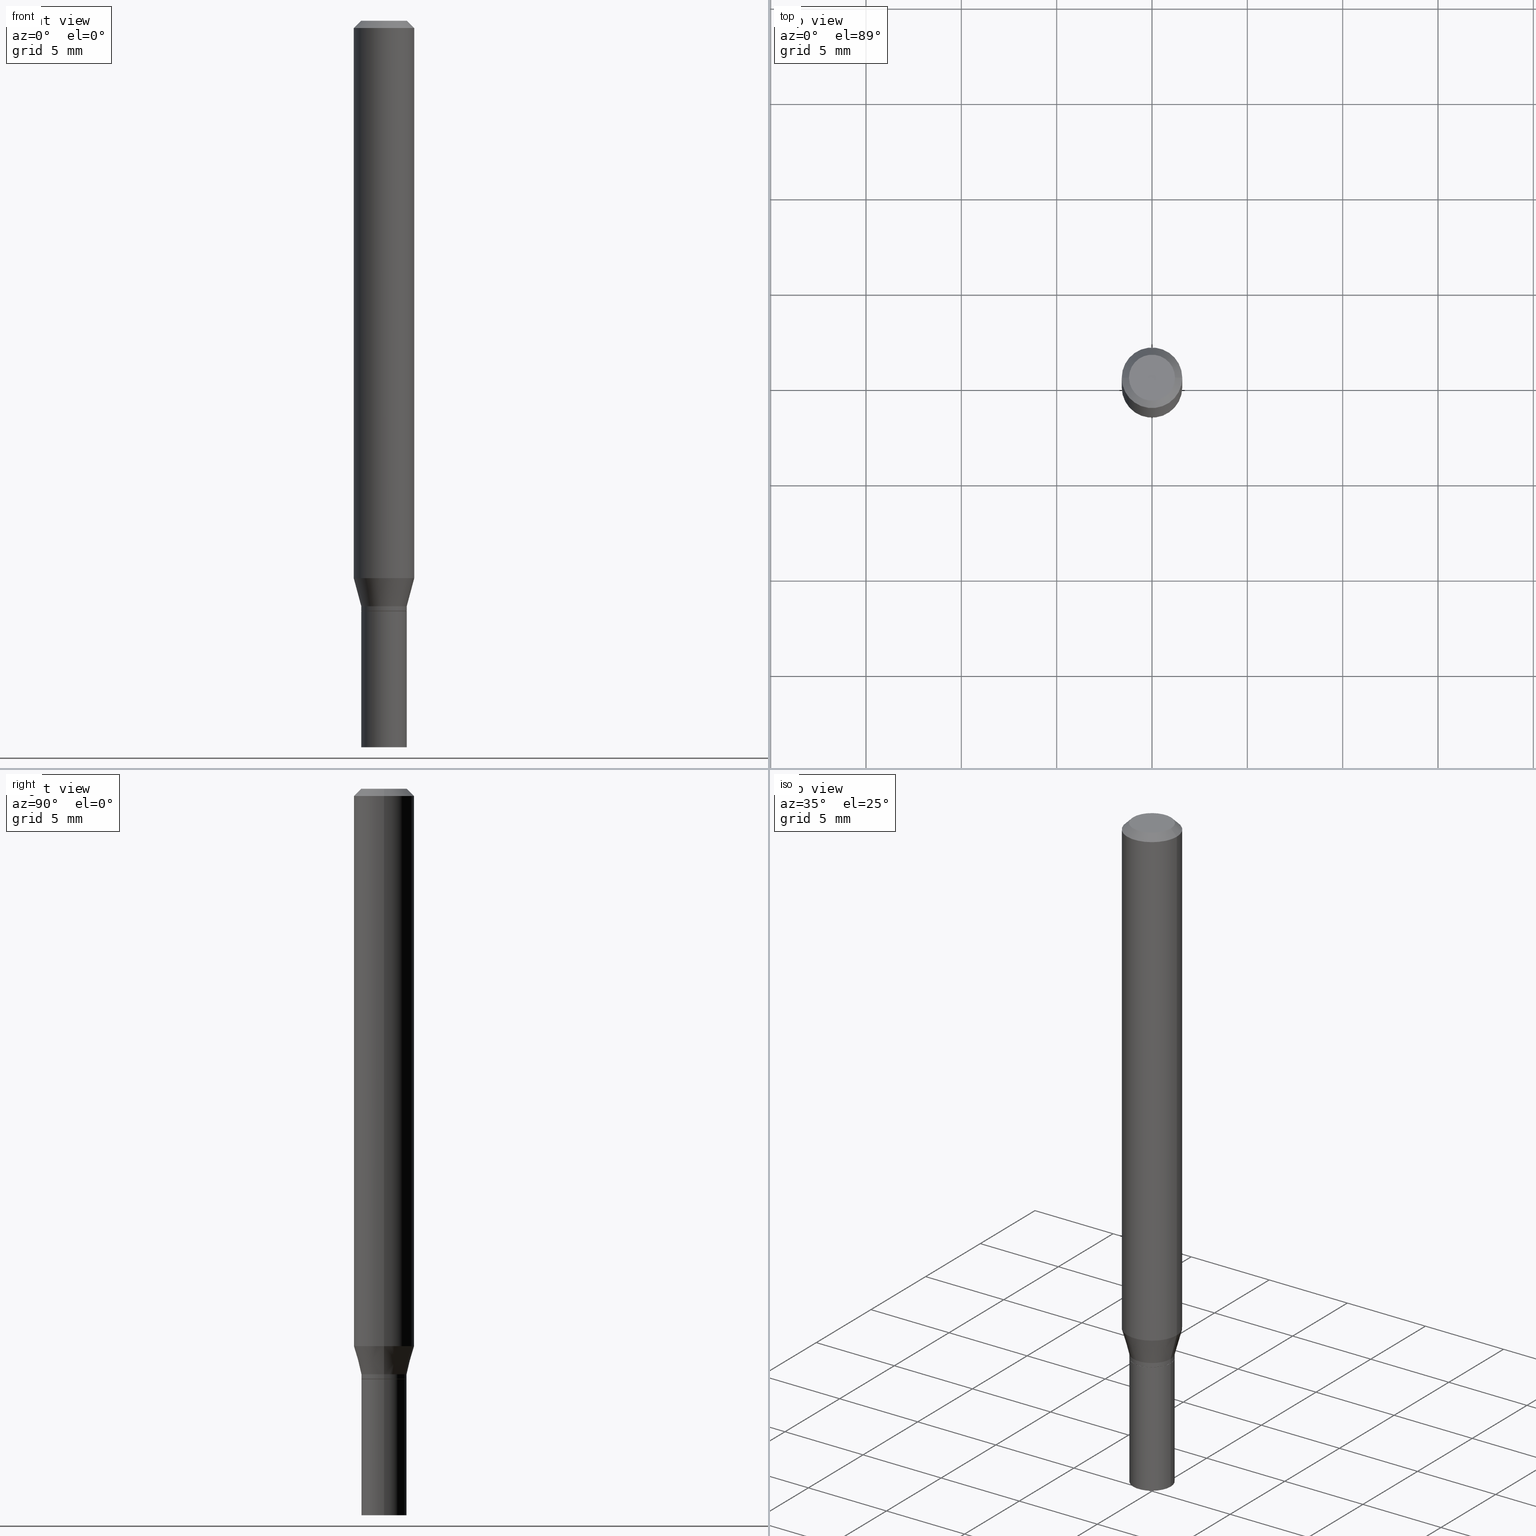
[diagram: canonical four-view strip — front | top / right | iso, engineering-drawing reading convention]
A machine part, canonical four-view strip (front | top / right | iso — engineering-drawing reading convention). The complete STEP part file that produces these views, byte-faithful:
ISO-10303-21;
HEADER;
FILE_DESCRIPTION (( 'STEP AP203' ),
    '1' );
FILE_NAME ('30511.STEP',
    '2024-03-13T16:13:27',
    ( '' ),
    ( '' ),
    'SwSTEP 2.0',
    'SolidWorks 2023',
    '' );
FILE_SCHEMA (( 'CONFIG_CONTROL_DESIGN' ));
ENDSEC;

DATA;
#1 = DIRECTION ( 'NONE',  ( -2.445468806185136877E-29, 3.491481338843145188E-15, 1.000000000000000000 ) ) ;
#2 = EDGE_CURVE ( 'NONE', #229, #205, #67, .T. ) ;
#3 = SHAPE_DEFINITION_REPRESENTATION ( #445, #124 ) ;
#4 = CARTESIAN_POINT ( 'NONE',  ( 0.04639999999999999680, -4.580125220294438201E-15, -1.219000000000000083 ) ) ;
#5 = APPROVAL ( #218, 'UNSPECIFIED' ) ;
#6 = CIRCLE ( 'NONE', #36, 0.04690000000000005970 ) ;
#7 = CALENDAR_DATE ( 2024, 13, 3 ) ;
#8 = DIRECTION ( 'NONE',  ( -2.445468806185136597E-29, 3.491481338843145583E-15, 1.000000000000000000 ) ) ;
#9 = DIRECTION ( 'NONE',  ( -2.445468806185136597E-29, 3.491481338843145583E-15, 1.000000000000000000 ) ) ;
#10 = EDGE_CURVE ( 'NONE', #205, #209, #385, .T. ) ;
#11 = ORIENTED_EDGE ( 'NONE', *, *, #418, .F. ) ;
#12 = CARTESIAN_POINT ( 'NONE',  ( 0.04689999999999994174, -4.548701888244848770E-15, -1.209000000000000075 ) ) ;
#13 = AXIS2_PLACEMENT_3D ( 'NONE', #226, #161, #123 ) ;
#14 = AXIS2_PLACEMENT_3D ( 'NONE', #134, #460, #241 ) ;
#15 = DIRECTION ( 'NONE',  ( -2.445468806185136597E-29, 3.491481338843145583E-15, 1.000000000000000000 ) ) ;
#16 = ORIENTED_EDGE ( 'NONE', *, *, #55, .T. ) ;
#17 = LINE ( 'NONE', #297, #442 ) ;
#18 = ADVANCED_FACE ( 'NONE', ( #429 ), #356, .F. ) ;
#19 = DIRECTION ( 'NONE',  ( 2.445468806185136597E-29, -3.491481338843145583E-15, -1.000000000000000000 ) ) ;
#20 = CIRCLE ( 'NONE', #350, 0.06250000000000001388 ) ;
#21 = ORGANIZATION ( 'UNSPECIFIED', 'UNSPECIFIED', '' ) ;
#22 = CARTESIAN_POINT ( 'NONE',  ( 2.814196610882909100E-29, -4.017926920957599786E-15, -1.150780007401925431 ) ) ;
#23 = DIRECTION ( 'NONE',  ( -2.445468806185136597E-29, 3.491481338843145583E-15, 1.000000000000000000 ) ) ;
#24 = ADVANCED_FACE ( 'NONE', ( #187 ), #391, .T. ) ;
#25 = ORIENTED_EDGE ( 'NONE', *, *, #55, .F. ) ;
#26 =( LENGTH_UNIT ( ) NAMED_UNIT ( * ) SI_UNIT ( $, .METRE. ) );
#27 = ORIENTED_EDGE ( 'NONE', *, *, #441, .F. ) ;
#28 = VERTEX_POINT ( 'NONE', #253 ) ;
#29 = CIRCLE ( 'NONE', #292, 0.04689999999999999725 ) ;
#30 = DIRECTION ( 'NONE',  ( -2.445468806185136877E-29, 3.491481338843145188E-15, 1.000000000000000000 ) ) ;
#31 = ORIENTED_EDGE ( 'NONE', *, *, #435, .T. ) ;
#32 = DIRECTION ( 'NONE',  ( -2.445468806185136597E-29, 3.491481338843145583E-15, 1.000000000000000000 ) ) ;
#33 = CC_DESIGN_PERSON_AND_ORGANIZATION_ASSIGNMENT ( #103, #40, ( #79 ) ) ;
#34 = APPROVAL_STATUS ( 'not_yet_approved' ) ;
#35 = CARTESIAN_POINT ( 'NONE',  ( 3.275009495835156819E-16, 0.04689999999999574370, -1.219000000000000083 ) ) ;
#36 = AXIS2_PLACEMENT_3D ( 'NONE', #373, #9, #406 ) ;
#37 = CALENDAR_DATE ( 2024, 13, 3 ) ;
#38 = DIRECTION ( 'NONE',  ( 1.000000000000000000, -6.982962677686262766E-15, 0.000000000000000000 ) ) ;
#39 = ADVANCED_FACE ( 'NONE', ( #71 ), #76, .T. ) ;
#40 = PERSON_AND_ORGANIZATION_ROLE ( 'design_supplier' ) ;
#41 = DIRECTION ( 'NONE',  ( 1.000000000000000000, -6.982962677686275388E-15, 0.000000000000000000 ) ) ;
#42 = DIRECTION ( 'NONE',  ( 1.000000000000000000, 0.000000000000000000, 0.000000000000000000 ) ) ;
#43 = CARTESIAN_POINT ( 'NONE',  ( -0.04689999999999999725, -4.413424337085770168E-15, -1.500000000000000222 ) ) ;
#44 = AXIS2_PLACEMENT_3D ( 'NONE', #50, #19, #195 ) ;
#45 = CC_DESIGN_SECURITY_CLASSIFICATION ( #358, ( #79 ) ) ;
#46 = DIRECTION ( 'NONE',  ( -2.445468806185136597E-29, 3.491481338843145583E-15, 1.000000000000000000 ) ) ;
#47 = CC_DESIGN_DATE_AND_TIME_ASSIGNMENT ( #324, #142, ( #358 ) ) ;
#48 = CARTESIAN_POINT ( 'NONE',  ( -5.777927200411294166E-45, 8.249348732810209197E-31, 2.362707381831093744E-16 ) ) ;
#49 = FACE_OUTER_BOUND ( 'NONE', #335, .T. ) ;
#50 = CARTESIAN_POINT ( 'NONE',  ( 3.668203209277705088E-31, -5.237222008264718399E-17, -0.01499999999999999944 ) ) ;
#51 = ORIENTED_EDGE ( 'NONE', *, *, #440, .T. ) ;
#52 = CARTESIAN_POINT ( 'NONE',  ( -0.04639999999999999680, -3.923774695482996852E-15, -1.219000000000000083 ) ) ;
#53 = DIRECTION ( 'NONE',  ( 1.000000000000000000, -6.982962677686267499E-15, 0.000000000000000000 ) ) ;
#54 = AXIS2_PLACEMENT_3D ( 'NONE', #22, #165, #38 ) ;
#55 = EDGE_CURVE ( 'NONE', #209, #205, #246, .T. ) ;
#56 = CC_DESIGN_APPROVAL ( #158, ( #358 ) ) ;
#57 = ORIENTED_EDGE ( 'NONE', *, *, #316, .F. ) ;
#58 = CARTESIAN_POINT ( 'NONE',  ( 3.316907271900976096E-16, 0.04749999999999999362, -4.770999450349472156E-17 ) ) ;
#59 = VERTEX_POINT ( 'NONE', #4 ) ;
#60 = DIRECTION ( 'NONE',  ( -0.7071067811865423547, 2.468850131082203024E-15, -0.7071067811865526798 ) ) ;
#61 = EDGE_LOOP ( 'NONE', ( #136, #160, #447, #25 ) ) ;
#62 = VECTOR ( 'NONE', #323, 39.37007874015748143 ) ;
#63 = AXIS2_PLACEMENT_3D ( 'NONE', #375, #236, #98 ) ;
#64 = EDGE_LOOP ( 'NONE', ( #275, #191 ) ) ;
#65 = ADVANCED_FACE ( 'NONE', ( #395 ), #256, .F. ) ;
#66 = DATE_TIME_ROLE ( 'creation_date' ) ;
#67 = LINE ( 'NONE', #379, #215 ) ;
#68 = CARTESIAN_POINT ( 'NONE',  ( 3.668203209277705088E-31, -5.237222008264718399E-17, -0.01499999999999999944 ) ) ;
#69 = DATE_AND_TIME ( #183, #119 ) ;
#70 = EDGE_CURVE ( 'NONE', #242, #229, #206, .T. ) ;
#71 = FACE_OUTER_BOUND ( 'NONE', #139, .T. ) ;
#72 = VECTOR ( 'NONE', #305, 39.37007874015748143 ) ;
#73 = APPROVAL_PERSON_ORGANIZATION ( #114, #158, #106 ) ;
#74 = PERSON_AND_ORGANIZATION_ROLE ( 'creator' ) ;
#75 = DIRECTION ( 'NONE',  ( 2.438088387897960049E-29, -3.491481338843145188E-15, -1.000000000000000000 ) ) ;
#76 = CYLINDRICAL_SURFACE ( 'NONE', #126, 0.04689999999999999725 ) ;
#77 = CARTESIAN_POINT ( 'NONE',  ( 3.668203209277704895E-29, -5.237222008264718177E-15, -1.500000000000000222 ) ) ;
#78 = AXIS2_PLACEMENT_3D ( 'NONE', #287, #360, #431 ) ;
#79 = PRODUCT_DEFINITION_FORMATION_WITH_SPECIFIED_SOURCE ( 'ANY', '', #80, .NOT_KNOWN. ) ;
#80 = PRODUCT ( '30511', '30511', '', ( #147 ) ) ;
#81 = DIRECTION ( 'NONE',  ( -2.445468806185136877E-29, 3.491481338843145188E-15, 1.000000000000000000 ) ) ;
#82 = ORIENTED_EDGE ( 'NONE', *, *, #137, .F. ) ;
#83 = DIRECTION ( 'NONE',  ( -2.445468806185136597E-29, 3.491481338843145583E-15, 1.000000000000000000 ) ) ;
#84 = VERTEX_POINT ( 'NONE', #43 ) ;
#85 = DIRECTION ( 'NONE',  ( 1.000000000000000000, -6.982962677686266711E-15, 4.876176775795936353E-29 ) ) ;
#86 = ADVANCED_FACE ( 'NONE', ( #328 ), #464, .T. ) ;
#87 = ORIENTED_EDGE ( 'NONE', *, *, #2, .F. ) ;
#88 = CIRCLE ( 'NONE', #341, 0.04689999999999999725 ) ;
#89 = CC_DESIGN_APPROVAL ( #331, ( #156 ) ) ;
#90 = CARTESIAN_POINT ( 'NONE',  ( -0.04689999999999999725, 3.332445430714869676E-16, -2.306980557329550952E-30 ) ) ;
#91 = DIRECTION ( 'NONE',  ( 0.7071067811865423547, -7.319954787623238690E-15, -0.7071067811865526798 ) ) ;
#92 = ADVANCED_FACE ( 'NONE', ( #179 ), #255, .T. ) ;
#93 = DIRECTION ( 'NONE',  ( 1.000000000000000000, -6.982962677686266711E-15, 0.000000000000000000 ) ) ;
#94 = ORIENTED_EDGE ( 'NONE', *, *, #122, .F. ) ;
#95 = VECTOR ( 'NONE', #30, 39.37007874015748143 ) ;
#96 = PLANE ( 'NONE',  #321 ) ;
#97 = ORIENTED_EDGE ( 'NONE', *, *, #70, .F. ) ;
#98 = DIRECTION ( 'NONE',  ( 1.000000000000000000, -6.982962677686268288E-15, 0.000000000000000000 ) ) ;
#99 = EDGE_LOOP ( 'NONE', ( #354, #27, #403, #237 ) ) ;
#100 = DIRECTION ( 'NONE',  ( -2.445468806185136877E-29, 3.491481338843145188E-15, 1.000000000000000000 ) ) ;
#101 = ADVANCED_FACE ( 'NONE', ( #152 ), #428, .T. ) ;
#102 = VERTEX_POINT ( 'NONE', #389 ) ;
#103 = PERSON_AND_ORGANIZATION ( #252, #21 ) ;
#104 = AXIS2_PLACEMENT_3D ( 'NONE', #369, #155, #448 ) ;
#105 = EDGE_LOOP ( 'NONE', ( #282, #401, #384, #11 ) ) ;
#106 = APPROVAL_ROLE ( '' ) ;
#107 = DIRECTION ( 'NONE',  ( -2.445468806185136597E-29, 3.491481338843145583E-15, 1.000000000000000000 ) ) ;
#108 = COORDINATED_UNIVERSAL_TIME_OFFSET ( 5, 0, .BEHIND. ) ;
#109 = CARTESIAN_POINT ( 'NONE',  ( 2.956571786677830083E-29, -4.221200938661362868E-15, -1.209000000000000075 ) ) ;
#110 = DATE_AND_TIME ( #7, #262 ) ;
#111 = LINE ( 'NONE', #90, #405 ) ;
#112 = AXIS2_PLACEMENT_3D ( 'NONE', #181, #362, #41 ) ;
#113 = DIMENSIONAL_EXPONENTS ( 1.000000000000000000, 0.000000000000000000, 0.000000000000000000, 0.000000000000000000, 0.000000000000000000, 0.000000000000000000, 0.000000000000000000 ) ;
#114 = PERSON_AND_ORGANIZATION ( #252, #21 ) ;
#115 = DIRECTION ( 'NONE',  ( 1.000000000000000000, -6.982962677686265922E-15, 4.876176775795935232E-29 ) ) ;
#116 = CARTESIAN_POINT ( 'NONE',  ( 2.814196610882909100E-29, -4.017926920957599786E-15, -1.150780007401925431 ) ) ;
#117 = LINE ( 'NONE', #260, #399 ) ;
#118 = VECTOR ( 'NONE', #286, 39.37007874015748854 ) ;
#119 = LOCAL_TIME ( 12, 13, 27.00000000000000000, #355 ) ;
#120 = CYLINDRICAL_SURFACE ( 'NONE', #188, 0.04689999999999999725 ) ;
#121 = VERTEX_POINT ( 'NONE', #144 ) ;
#122 = EDGE_CURVE ( 'NONE', #205, #102, #436, .T. ) ;
#123 = DIRECTION ( 'NONE',  ( -1.000000000000000000, 6.982962677686267499E-15, 0.000000000000000000 ) ) ;
#124 = ADVANCED_BREP_SHAPE_REPRESENTATION ( '30511', ( #271, #409, #135 ), #270 ) ;
#125 = CARTESIAN_POINT ( 'NONE',  ( 0.000000000000000000, 0.000000000000000000, 0.000000000000000000 ) ) ;
#126 = AXIS2_PLACEMENT_3D ( 'NONE', #437, #211, #258 ) ;
#127 = DIRECTION ( 'NONE',  ( 1.000000000000000000, -6.982962677686267499E-15, 4.852736867747366768E-29 ) ) ;
#128 = CC_DESIGN_PERSON_AND_ORGANIZATION_ASSIGNMENT ( #290, #361, ( #79 ) ) ;
#129 = DIRECTION ( 'NONE',  ( -2.445468806185136597E-29, 3.491481338843145583E-15, 1.000000000000000000 ) ) ;
#130 = ORIENTED_EDGE ( 'NONE', *, *, #267, .T. ) ;
#131 = LENGTH_MEASURE_WITH_UNIT ( LENGTH_MEASURE( 0.02539999999999999897 ), #26 );
#132 = ORIENTED_EDGE ( 'NONE', *, *, #424, .F. ) ;
#133 = AXIS2_PLACEMENT_3D ( 'NONE', #265, #444, #263 ) ;
#134 = CARTESIAN_POINT ( 'NONE',  ( 2.981026474739681628E-29, -4.256115752049794517E-15, -1.219000000000000083 ) ) ;
#135 = AXIS2_PLACEMENT_3D ( 'NONE', #353, #200, #42 ) ;
#136 = ORIENTED_EDGE ( 'NONE', *, *, #138, .F. ) ;
#137 = EDGE_CURVE ( 'NONE', #28, #229, #398, .T. ) ;
#138 = EDGE_CURVE ( 'NONE', #242, #209, #322, .T. ) ;
#139 = EDGE_LOOP ( 'NONE', ( #264, #51, #141, #97 ) ) ;
#140 = FACE_OUTER_BOUND ( 'NONE', #420, .T. ) ;
#141 = ORIENTED_EDGE ( 'NONE', *, *, #137, .T. ) ;
#142 = DATE_TIME_ROLE ( 'classification_date' ) ;
#143 = AXIS2_PLACEMENT_3D ( 'NONE', #365, #46, #368 ) ;
#144 = CARTESIAN_POINT ( 'NONE',  ( -0.06250000000000002776, -1.591060360670060817E-15, -0.01499999999999999944 ) ) ;
#145 = EDGE_CURVE ( 'NONE', #102, #121, #20, .T. ) ;
#146 = CARTESIAN_POINT ( 'NONE',  ( -0.04689999999999994174, -3.887956395589876295E-15, -1.209000000000000075 ) ) ;
#147 = MECHANICAL_CONTEXT ( 'NONE', #345, 'mechanical' ) ;
#148 = DIRECTION ( 'NONE',  ( 1.000000000000000000, -6.982962677686275388E-15, 0.000000000000000000 ) ) ;
#149 = DIRECTION ( 'NONE',  ( -2.445468806185136597E-29, 3.491481338843145583E-15, 1.000000000000000000 ) ) ;
#150 = CIRCLE ( 'NONE', #313, 0.06250000000000001388 ) ;
#151 = ADVANCED_FACE ( 'NONE', ( #250 ), #213, .F. ) ;
#152 = FACE_OUTER_BOUND ( 'NONE', #105, .T. ) ;
#153 = DIRECTION ( 'NONE',  ( -2.445468806185136597E-29, 3.491481338843145583E-15, 1.000000000000000000 ) ) ;
#154 = EDGE_LOOP ( 'NONE', ( #31, #382, #416, #87 ) ) ;
#155 = DIRECTION ( 'NONE',  ( -2.445468806185136597E-29, 3.491481338843145583E-15, 1.000000000000000000 ) ) ;
#156 = PRODUCT_DEFINITION ( 'UNKNOWN', '', #79, #279 ) ;
#157 = EDGE_CURVE ( 'NONE', #84, #196, #111, .T. ) ;
#158 = APPROVAL ( #34, 'UNSPECIFIED' ) ;
#159 = FACE_OUTER_BOUND ( 'NONE', #175, .T. ) ;
#160 = ORIENTED_EDGE ( 'NONE', *, *, #70, .T. ) ;
#161 = DIRECTION ( 'NONE',  ( 2.445468806185136597E-29, -3.491481338843145583E-15, -1.000000000000000000 ) ) ;
#162 = ORIENTED_EDGE ( 'NONE', *, *, #396, .F. ) ;
#163 = DIRECTION ( 'NONE',  ( -2.445468806185136597E-29, 3.491481338843145583E-15, 1.000000000000000000 ) ) ;
#164 = CONICAL_SURFACE ( 'NONE', #143, 0.04639999999999999680, 0.7853981633974739252 ) ;
#165 = DIRECTION ( 'NONE',  ( -2.445468806185136597E-29, 3.491481338843145583E-15, 1.000000000000000000 ) ) ;
#166 = LINE ( 'NONE', #454, #72 ) ;
#167 = ORIENTED_EDGE ( 'NONE', *, *, #220, .F. ) ;
#168 =( CONVERSION_BASED_UNIT ( 'INCH', #131 ) LENGTH_UNIT ( ) NAMED_UNIT ( #113 ) );
#169 = ORIENTED_EDGE ( 'NONE', *, *, #351, .F. ) ;
#170 = CIRCLE ( 'NONE', #261, 0.04639999999999999680 ) ;
#171 = APPLICATION_PROTOCOL_DEFINITION ( 'international standard', 'config_control_design', 1994, #345 ) ;
#172 = CIRCLE ( 'NONE', #417, 0.04749999999999999362 ) ;
#173 = ORIENTED_EDGE ( 'NONE', *, *, #351, .T. ) ;
#174 = LINE ( 'NONE', #380, #95 ) ;
#175 = EDGE_LOOP ( 'NONE', ( #347, #173, #455, #233 ) ) ;
#176 = UNCERTAINTY_MEASURE_WITH_UNIT (LENGTH_MEASURE( 1.000000000000000082E-05 ), #168, 'distance_accuracy_value', 'NONE');
#177 = COORDINATED_UNIVERSAL_TIME_OFFSET ( 5, 0, .BEHIND. ) ;
#178 = EDGE_CURVE ( 'NONE', #59, #244, #170, .T. ) ;
#179 = FACE_OUTER_BOUND ( 'NONE', #61, .T. ) ;
#180 = AXIS2_PLACEMENT_3D ( 'NONE', #293, #182, #325 ) ;
#181 = CARTESIAN_POINT ( 'NONE',  ( 2.956571786677830083E-29, -4.221200938661362868E-15, -1.209000000000000075 ) ) ;
#182 = DIRECTION ( 'NONE',  ( -2.445468806185136597E-29, 3.491481338843145583E-15, 1.000000000000000000 ) ) ;
#183 = CALENDAR_DATE ( 2024, 13, 3 ) ;
#184 = CARTESIAN_POINT ( 'NONE',  ( 0.000000000000000000, 0.000000000000000000, 0.000000000000000000 ) ) ;
#185 = ADVANCED_FACE ( 'NONE', ( #227 ), #276, .T. ) ;
#186 = PERSON_AND_ORGANIZATION ( #252, #21 ) ;
#187 = FACE_OUTER_BOUND ( 'NONE', #281, .T. ) ;
#188 = AXIS2_PLACEMENT_3D ( 'NONE', #302, #272, #85 ) ;
#189 = FACE_OUTER_BOUND ( 'NONE', #154, .T. ) ;
#190 = CARTESIAN_POINT ( 'NONE',  ( -0.04689999999999999725, -4.413424337085770168E-15, -1.219000000000000083 ) ) ;
#191 = ORIENTED_EDGE ( 'NONE', *, *, #274, .F. ) ;
#192 = DIRECTION ( 'NONE',  ( 1.000000000000000000, -6.982962677686276966E-15, 0.000000000000000000 ) ) ;
#193 = ORIENTED_EDGE ( 'NONE', *, *, #145, .F. ) ;
#194 = CIRCLE ( 'NONE', #432, 0.04749999999999999362 ) ;
#195 = DIRECTION ( 'NONE',  ( -1.000000000000000000, 6.982962677686267499E-15, 0.000000000000000000 ) ) ;
#196 = VERTEX_POINT ( 'NONE', #190 ) ;
#197 = FACE_OUTER_BOUND ( 'NONE', #310, .T. ) ;
#198 = LINE ( 'NONE', #421, #443 ) ;
#199 = CONICAL_SURFACE ( 'NONE', #465, 0.04689999999999994174, 0.2617993877991499074 ) ;
#200 = DIRECTION ( 'NONE',  ( 0.000000000000000000, 0.000000000000000000, 1.000000000000000000 ) ) ;
#201 = ORIENTED_EDGE ( 'NONE', *, *, #306, .T. ) ;
#202 = CARTESIAN_POINT ( 'NONE',  ( 3.668203209277705088E-31, -5.237222008264718399E-17, -0.01499999999999999944 ) ) ;
#203 = ORIENTED_EDGE ( 'NONE', *, *, #440, .F. ) ;
#204 = DIRECTION ( 'NONE',  ( -2.445468806185136597E-29, 3.491481338843145583E-15, 1.000000000000000000 ) ) ;
#205 = VERTEX_POINT ( 'NONE', #366 ) ;
#206 = CIRCLE ( 'NONE', #112, 0.04689999999999994174 ) ;
#207 = AXIS2_PLACEMENT_3D ( 'NONE', #219, #32, #115 ) ;
#208 =( NAMED_UNIT ( * ) PLANE_ANGLE_UNIT ( ) SI_UNIT ( $, .RADIAN. ) );
#209 = VERTEX_POINT ( 'NONE', #330 ) ;
#210 = PERSON_AND_ORGANIZATION ( #252, #21 ) ;
#211 = DIRECTION ( 'NONE',  ( -2.445468806185136597E-29, 3.491481338843145583E-15, 1.000000000000000000 ) ) ;
#212 = PERSON_AND_ORGANIZATION ( #252, #21 ) ;
#213 = PLANE ( 'NONE',  #78 ) ;
#214 = APPROVAL_ROLE ( '' ) ;
#215 = VECTOR ( 'NONE', #342, 39.37007874015748854 ) ;
#216 = CONICAL_SURFACE ( 'NONE', #14, 0.04639999999999999680, 0.7853981633974739252 ) ;
#217 = DIRECTION ( 'NONE',  ( 1.000000000000000000, -6.982962677686266711E-15, 4.876176775795936353E-29 ) ) ;
#218 = APPROVAL_STATUS ( 'not_yet_approved' ) ;
#219 = CARTESIAN_POINT ( 'NONE',  ( 0.000000000000000000, 0.000000000000000000, 0.000000000000000000 ) ) ;
#220 = EDGE_CURVE ( 'NONE', #245, #84, #88, .T. ) ;
#221 = COORDINATED_UNIVERSAL_TIME_OFFSET ( 5, 0, .BEHIND. ) ;
#222 = CARTESIAN_POINT ( 'NONE',  ( 3.576687321579069994E-29, -5.368277968210015545E-15, -1.500000000000000222 ) ) ;
#223 = CARTESIAN_POINT ( 'NONE',  ( 0.04689999999999999725, -4.583616701633280419E-15, -1.219000000000000083 ) ) ;
#224 = VECTOR ( 'NONE', #1, 39.37007874015748143 ) ;
#225 = CIRCLE ( 'NONE', #63, 0.04690000000000005970 ) ;
#226 = CARTESIAN_POINT ( 'NONE',  ( 3.668203209277705088E-31, -5.237222008264718399E-17, -0.01499999999999999944 ) ) ;
#227 = FACE_OUTER_BOUND ( 'NONE', #99, .T. ) ;
#228 = CARTESIAN_POINT ( 'NONE',  ( 2.981026474739681628E-29, -4.256115752049794517E-15, -1.219000000000000083 ) ) ;
#229 = VERTEX_POINT ( 'NONE', #12 ) ;
#230 = AXIS2_PLACEMENT_3D ( 'NONE', #109, #149, #148 ) ;
#231 = CIRCLE ( 'NONE', #371, 0.04689999999999994174 ) ;
#232 = CARTESIAN_POINT ( 'NONE',  ( 0.04689999999999999725, -5.564722957848204079E-15, -1.500000000000000222 ) ) ;
#233 = ORIENTED_EDGE ( 'NONE', *, *, #388, .F. ) ;
#234 = EDGE_CURVE ( 'NONE', #453, #346, #194, .T. ) ;
#235 = DIRECTION ( 'NONE',  ( 1.000000000000000000, -6.982962677686275388E-15, 0.000000000000000000 ) ) ;
#236 = DIRECTION ( 'NONE',  ( -2.445468806185136597E-29, 3.491481338843145583E-15, 1.000000000000000000 ) ) ;
#237 = ORIENTED_EDGE ( 'NONE', *, *, #456, .T. ) ;
#238 = CIRCLE ( 'NONE', #133, 0.04639999999999999680 ) ;
#239 = CC_DESIGN_PERSON_AND_ORGANIZATION_ASSIGNMENT ( #427, #288, ( #80 ) ) ;
#240 = ADVANCED_FACE ( 'NONE', ( #336 ), #438, .T. ) ;
#241 = DIRECTION ( 'NONE',  ( 1.000000000000000000, -6.982962677686276966E-15, 0.000000000000000000 ) ) ;
#242 = VERTEX_POINT ( 'NONE', #266 ) ;
#243 = CC_DESIGN_DATE_AND_TIME_ASSIGNMENT ( #69, #66, ( #156 ) ) ;
#244 = VERTEX_POINT ( 'NONE', #52 ) ;
#245 = VERTEX_POINT ( 'NONE', #232 ) ;
#246 = CIRCLE ( 'NONE', #298, 0.06250000000000000000 ) ;
#247 = ORIENTED_EDGE ( 'NONE', *, *, #122, .T. ) ;
#248 = APPROVAL_ROLE ( '' ) ;
#249 = CC_DESIGN_PERSON_AND_ORGANIZATION_ASSIGNMENT ( #210, #74, ( #156 ) ) ;
#250 = FACE_OUTER_BOUND ( 'NONE', #64, .T. ) ;
#251 = PERSON_AND_ORGANIZATION ( #252, #21 ) ;
#252 = PERSON ( 'UNSPECIFIED', 'UNSPECIFIED', 'UNSPECIFIED', ('UNSPECIFIED'), ('UNSPECIFIED'), ('UNSPECIFIED') ) ;
#253 = CARTESIAN_POINT ( 'NONE',  ( 0.04690000000000005970, -4.581870960963860493E-15, -1.218499999999999917 ) ) ;
#254 = APPROVAL_DATE_TIME ( #110, #5 ) ;
#255 = CONICAL_SURFACE ( 'NONE', #230, 0.04689999999999994174, 0.2617993877991499074 ) ;
#256 = PLANE ( 'NONE',  #407 ) ;
#257 = CC_DESIGN_PERSON_AND_ORGANIZATION_ASSIGNMENT ( #186, #326, ( #358 ) ) ;
#258 = DIRECTION ( 'NONE',  ( 1.000000000000000000, -6.982962677686266711E-15, 4.876176775795936353E-29 ) ) ;
#259 = DIRECTION ( 'NONE',  ( 1.000000000000000000, -6.982962677686265922E-15, 4.876176775795935793E-29 ) ) ;
#260 = CARTESIAN_POINT ( 'NONE',  ( -0.04639999999999999680, -3.926423922657108053E-15, -1.219000000000000083 ) ) ;
#261 = AXIS2_PLACEMENT_3D ( 'NONE', #228, #400, #192 ) ;
#262 = LOCAL_TIME ( 12, 13, 27.00000000000000000, #108 ) ;
#263 = DIRECTION ( 'NONE',  ( 1.000000000000000000, -6.982962677686276966E-15, 0.000000000000000000 ) ) ;
#264 = ORIENTED_EDGE ( 'NONE', *, *, #268, .F. ) ;
#265 = CARTESIAN_POINT ( 'NONE',  ( 2.981026474739681628E-29, -4.256115752049794517E-15, -1.219000000000000083 ) ) ;
#266 = CARTESIAN_POINT ( 'NONE',  ( -0.04689999999999994174, -3.730897053348706338E-15, -1.209000000000000075 ) ) ;
#267 = EDGE_CURVE ( 'NONE', #318, #196, #291, .T. ) ;
#268 = EDGE_CURVE ( 'NONE', #308, #242, #17, .T. ) ;
#269 = CC_DESIGN_APPROVAL ( #5, ( #79 ) ) ;
#270 =( GEOMETRIC_REPRESENTATION_CONTEXT ( 3 ) GLOBAL_UNCERTAINTY_ASSIGNED_CONTEXT ( ( #176 ) ) GLOBAL_UNIT_ASSIGNED_CONTEXT ( ( #168, #208, #457 ) ) REPRESENTATION_CONTEXT ( 'NONE', 'WORKASPACE' ) );
#271 = MANIFOLD_SOLID_BREP ( 'Body-Move/Copy2[1]', #283 ) ;
#272 = DIRECTION ( 'NONE',  ( -2.445468806185136597E-29, 3.491481338843145583E-15, 1.000000000000000000 ) ) ;
#273 = ORIENTED_EDGE ( 'NONE', *, *, #441, .T. ) ;
#274 = EDGE_CURVE ( 'NONE', #244, #59, #238, .T. ) ;
#275 = ORIENTED_EDGE ( 'NONE', *, *, #178, .F. ) ;
#276 = CONICAL_SURFACE ( 'NONE', #13, 0.06250000000000001388, 0.7853981633974410625 ) ;
#277 = CARTESIAN_POINT ( 'NONE',  ( -0.06250000000000001388, 3.840629472727445902E-16, -0.01499999999999999944 ) ) ;
#278 = ORIENTED_EDGE ( 'NONE', *, *, #145, .T. ) ;
#279 = DESIGN_CONTEXT ( 'detailed design', #329, 'design' ) ;
#280 = DIRECTION ( 'NONE',  ( -1.000000000000000000, 6.982962677686265922E-15, -4.876176775795935793E-29 ) ) ;
#281 = EDGE_LOOP ( 'NONE', ( #132, #16, #247, #374 ) ) ;
#282 = ORIENTED_EDGE ( 'NONE', *, *, #157, .F. ) ;
#283 = CLOSED_SHELL ( 'NONE', ( #86, #65, #101, #18 ) ) ;
#284 = APPROVAL_PERSON_ORGANIZATION ( #212, #331, #248 ) ;
#285 = APPROVAL_DATE_TIME ( #394, #158 ) ;
#286 = DIRECTION ( 'NONE',  ( -0.2588190451025211836, 5.211531920934547886E-15, 0.9659258262890679791 ) ) ;
#287 = CARTESIAN_POINT ( 'NONE',  ( 2.981026474739681628E-29, -4.256115752049794517E-15, -1.219000000000000083 ) ) ;
#288 = PERSON_AND_ORGANIZATION_ROLE ( 'design_owner' ) ;
#289 = DIRECTION ( 'NONE',  ( -2.445468806185136597E-29, 3.491481338843145583E-15, 1.000000000000000000 ) ) ;
#290 = PERSON_AND_ORGANIZATION ( #252, #21 ) ;
#291 = CIRCLE ( 'NONE', #104, 0.04689999999999999725 ) ;
#292 = AXIS2_PLACEMENT_3D ( 'NONE', #419, #129, #93 ) ;
#293 = CARTESIAN_POINT ( 'NONE',  ( 0.000000000000000000, 0.000000000000000000, 0.000000000000000000 ) ) ;
#294 = DIRECTION ( 'NONE',  ( -2.438088387897960049E-29, 3.491481338843145188E-15, 1.000000000000000000 ) ) ;
#295 = DIRECTION ( 'NONE',  ( 1.000000000000000000, -6.982962677686275388E-15, 0.000000000000000000 ) ) ;
#296 = ORIENTED_EDGE ( 'NONE', *, *, #220, .T. ) ;
#297 = CARTESIAN_POINT ( 'NONE',  ( -0.04689999999999999725, 3.332445430714869676E-16, -2.306980557329550952E-30 ) ) ;
#298 = AXIS2_PLACEMENT_3D ( 'NONE', #116, #289, #364 ) ;
#299 = CARTESIAN_POINT ( 'NONE',  ( -0.04749999999999999362, 3.578768372314215436E-16, 2.362707381831069585E-16 ) ) ;
#300 = ORIENTED_EDGE ( 'NONE', *, *, #274, .T. ) ;
#301 = DIRECTION ( 'NONE',  ( 1.000000000000000000, -6.982962677686265922E-15, 4.876176775795935232E-29 ) ) ;
#302 = CARTESIAN_POINT ( 'NONE',  ( 0.000000000000000000, 0.000000000000000000, 0.000000000000000000 ) ) ;
#303 = CLOSED_SHELL ( 'NONE', ( #307, #339, #315, #240, #349, #92, #24, #185, #381, #151, #397, #39 ) ) ;
#304 = AXIS2_PLACEMENT_3D ( 'NONE', #77, #83, #402 ) ;
#305 = DIRECTION ( 'NONE',  ( 0.7071067811865656694, -2.468850131082446387E-15, 0.7071067811865294761 ) ) ;
#306 = EDGE_CURVE ( 'NONE', #28, #308, #6, .T. ) ;
#307 = ADVANCED_FACE ( 'NONE', ( #197 ), #120, .T. ) ;
#308 = VERTEX_POINT ( 'NONE', #337 ) ;
#309 = CARTESIAN_POINT ( 'NONE',  ( -5.777927200411294166E-45, 8.249348732810209197E-31, 2.362707381831093744E-16 ) ) ;
#310 = EDGE_LOOP ( 'NONE', ( #201, #439, #463, #82 ) ) ;
#311 = ORIENTED_EDGE ( 'NONE', *, *, #234, .F. ) ;
#312 = AXIS2_PLACEMENT_3D ( 'NONE', #35, #75, #393 ) ;
#313 = AXIS2_PLACEMENT_3D ( 'NONE', #202, #376, #53 ) ;
#314 = ORIENTED_EDGE ( 'NONE', *, *, #267, .F. ) ;
#315 = ADVANCED_FACE ( 'NONE', ( #49 ), #449, .T. ) ;
#316 = EDGE_CURVE ( 'NONE', #84, #245, #458, .T. ) ;
#317 = FACE_OUTER_BOUND ( 'NONE', #459, .T. ) ;
#318 = VERTEX_POINT ( 'NONE', #223 ) ;
#319 = SECURITY_CLASSIFICATION_LEVEL ( 'unclassified' ) ;
#320 = CARTESIAN_POINT ( 'NONE',  ( 0.04689999999999999725, -3.275009495834859024E-16, 2.286926907848294038E-30 ) ) ;
#321 = AXIS2_PLACEMENT_3D ( 'NONE', #58, #344, #280 ) ;
#322 = LINE ( 'NONE', #146, #118 ) ;
#323 = DIRECTION ( 'NONE',  ( -2.445468806185136877E-29, 3.491481338843145188E-15, 1.000000000000000000 ) ) ;
#324 = DATE_AND_TIME ( #392, #327 ) ;
#325 = DIRECTION ( 'NONE',  ( 1.000000000000000000, -6.982962677686266711E-15, 4.876176775795936353E-29 ) ) ;
#326 = PERSON_AND_ORGANIZATION_ROLE ( 'classification_officer' ) ;
#327 = LOCAL_TIME ( 12, 13, 27.00000000000000000, #221 ) ;
#328 = FACE_OUTER_BOUND ( 'NONE', #367, .T. ) ;
#329 = APPLICATION_CONTEXT ( 'configuration controlled 3d designs of mechanical parts and assemblies' ) ;
#330 = CARTESIAN_POINT ( 'NONE',  ( -0.06250000000000000000, -3.573837711107537170E-15, -1.150780007401925431 ) ) ;
#331 = APPROVAL ( #430, 'UNSPECIFIED' ) ;
#332 = DIRECTION ( 'NONE',  ( 1.000000000000000000, -6.982962677686256455E-15, 0.000000000000000000 ) ) ;
#333 = DIRECTION ( 'NONE',  ( -2.445468806185136877E-29, 3.491481338843145188E-15, 1.000000000000000000 ) ) ;
#334 = AXIS2_PLACEMENT_3D ( 'NONE', #125, #404, #301 ) ;
#335 = EDGE_LOOP ( 'NONE', ( #311, #461, #278, #413 ) ) ;
#336 = FACE_OUTER_BOUND ( 'NONE', #387, .T. ) ;
#337 = CARTESIAN_POINT ( 'NONE',  ( -0.04690000000000005970, -3.921125468308885651E-15, -1.218499999999999917 ) ) ;
#338 = ORIENTED_EDGE ( 'NONE', *, *, #234, .T. ) ;
#339 = ADVANCED_FACE ( 'NONE', ( #159 ), #164, .T. ) ;
#340 = CARTESIAN_POINT ( 'NONE',  ( 2.956571786677830083E-29, -4.221200938661362868E-15, -1.209000000000000075 ) ) ;
#341 = AXIS2_PLACEMENT_3D ( 'NONE', #450, #15, #332 ) ;
#342 = DIRECTION ( 'NONE',  ( 0.2588190451025211836, 1.565188264969622559E-15, 0.9659258262890679791 ) ) ;
#343 = APPROVAL_PERSON_ORGANIZATION ( #251, #5, #214 ) ;
#344 = DIRECTION ( 'NONE',  ( 2.438088387897960049E-29, -3.491481338843145188E-15, -1.000000000000000000 ) ) ;
#345 = APPLICATION_CONTEXT ( 'configuration controlled 3d designs of mechanical parts and assemblies' ) ;
#346 = VERTEX_POINT ( 'NONE', #299 ) ;
#347 = ORIENTED_EDGE ( 'NONE', *, *, #178, .T. ) ;
#348 = ORIENTED_EDGE ( 'NONE', *, *, #10, .T. ) ;
#349 = ADVANCED_FACE ( 'NONE', ( #189 ), #199, .T. ) ;
#350 = AXIS2_PLACEMENT_3D ( 'NONE', #68, #107, #466 ) ;
#351 = EDGE_CURVE ( 'NONE', #244, #308, #117, .T. ) ;
#352 = LOCAL_TIME ( 12, 13, 27.00000000000000000, #390 ) ;
#353 = CARTESIAN_POINT ( 'NONE',  ( 0.000000000000000000, 0.000000000000000000, 0.000000000000000000 ) ) ;
#354 = ORIENTED_EDGE ( 'NONE', *, *, #434, .F. ) ;
#355 = COORDINATED_UNIVERSAL_TIME_OFFSET ( 5, 0, .BEHIND. ) ;
#356 = PLANE ( 'NONE',  #312 ) ;
#357 = CARTESIAN_POINT ( 'NONE',  ( 0.06250000000000001388, -4.364351673553917187E-16, 3.047610484872460221E-30 ) ) ;
#358 = SECURITY_CLASSIFICATION ( '', '', #319 ) ;
#359 = CALENDAR_DATE ( 2024, 13, 3 ) ;
#360 = DIRECTION ( 'NONE',  ( -2.438088387897960049E-29, 3.491481338843145188E-15, 1.000000000000000000 ) ) ;
#361 = PERSON_AND_ORGANIZATION_ROLE ( 'creator' ) ;
#362 = DIRECTION ( 'NONE',  ( -2.445468806185136597E-29, 3.491481338843145583E-15, 1.000000000000000000 ) ) ;
#363 = APPLICATION_PROTOCOL_DEFINITION ( 'international standard', 'config_control_design', 1994, #329 ) ;
#364 = DIRECTION ( 'NONE',  ( 1.000000000000000000, -6.982962677686262766E-15, 0.000000000000000000 ) ) ;
#365 = CARTESIAN_POINT ( 'NONE',  ( 2.981026474739681628E-29, -4.256115752049794517E-15, -1.219000000000000083 ) ) ;
#366 = CARTESIAN_POINT ( 'NONE',  ( 0.06250000000000000000, -4.454362088312991456E-15, -1.150780007401925431 ) ) ;
#367 = EDGE_LOOP ( 'NONE', ( #296, #451, #314, #162 ) ) ;
#368 = DIRECTION ( 'NONE',  ( 1.000000000000000000, -6.982962677686276966E-15, 0.000000000000000000 ) ) ;
#369 = CARTESIAN_POINT ( 'NONE',  ( 2.981026474739681628E-29, -4.256115752049794517E-15, -1.219000000000000083 ) ) ;
#370 = AXIS2_PLACEMENT_3D ( 'NONE', #184, #8, #217 ) ;
#371 = AXIS2_PLACEMENT_3D ( 'NONE', #340, #204, #235 ) ;
#372 = ORIENTED_EDGE ( 'NONE', *, *, #418, .T. ) ;
#373 = CARTESIAN_POINT ( 'NONE',  ( 2.979803740336588827E-29, -4.254370011380373013E-15, -1.218499999999999917 ) ) ;
#374 = ORIENTED_EDGE ( 'NONE', *, *, #456, .F. ) ;
#375 = CARTESIAN_POINT ( 'NONE',  ( 2.979803740336588827E-29, -4.254370011380373013E-15, -1.218499999999999917 ) ) ;
#376 = DIRECTION ( 'NONE',  ( -2.445468806185136597E-29, 3.491481338843145583E-15, 1.000000000000000000 ) ) ;
#377 = ORIENTED_EDGE ( 'NONE', *, *, #424, .T. ) ;
#378 = DIRECTION ( 'NONE',  ( 1.000000000000000000, -6.982962677686267499E-15, 4.852736867747366768E-29 ) ) ;
#379 = CARTESIAN_POINT ( 'NONE',  ( 0.04689999999999994174, -4.548701888244848770E-15, -1.209000000000000075 ) ) ;
#380 = CARTESIAN_POINT ( 'NONE',  ( 0.04689999999999999725, -3.275009495834859024E-16, 2.286926907848294038E-30 ) ) ;
#381 = ADVANCED_FACE ( 'NONE', ( #317 ), #96, .F. ) ;
#382 = ORIENTED_EDGE ( 'NONE', *, *, #138, .T. ) ;
#383 = CARTESIAN_POINT ( 'NONE',  ( 0.06250000000000001388, -4.811533449433680977E-16, -0.01499999999999999944 ) ) ;
#384 = ORIENTED_EDGE ( 'NONE', *, *, #396, .T. ) ;
#385 = CIRCLE ( 'NONE', #54, 0.06250000000000000000 ) ;
#386 = DATE_AND_TIME ( #37, #352 ) ;
#387 = EDGE_LOOP ( 'NONE', ( #348, #377, #193, #94 ) ) ;
#388 = EDGE_CURVE ( 'NONE', #59, #28, #166, .T. ) ;
#389 = CARTESIAN_POINT ( 'NONE',  ( 0.06250000000000001388, -4.888073874380389458E-16, -0.01499999999999999944 ) ) ;
#390 = COORDINATED_UNIVERSAL_TIME_OFFSET ( 5, 0, .BEHIND. ) ;
#391 = CYLINDRICAL_SURFACE ( 'NONE', #207, 0.06250000000000001388 ) ;
#392 = CALENDAR_DATE ( 2024, 13, 3 ) ;
#393 = DIRECTION ( 'NONE',  ( -1.000000000000000000, 6.982962677686265922E-15, -4.876176775795935793E-29 ) ) ;
#394 = DATE_AND_TIME ( #359, #408 ) ;
#395 = FACE_OUTER_BOUND ( 'NONE', #422, .T. ) ;
#396 = EDGE_CURVE ( 'NONE', #245, #318, #174, .T. ) ;
#397 = ADVANCED_FACE ( 'NONE', ( #140 ), #216, .T. ) ;
#398 = LINE ( 'NONE', #320, #224 ) ;
#399 = VECTOR ( 'NONE', #462, 39.37007874015748143 ) ;
#400 = DIRECTION ( 'NONE',  ( -2.445468806185136597E-29, 3.491481338843145583E-15, 1.000000000000000000 ) ) ;
#401 = ORIENTED_EDGE ( 'NONE', *, *, #316, .T. ) ;
#402 = DIRECTION ( 'NONE',  ( 1.000000000000000000, -6.982962677686256455E-15, 0.000000000000000000 ) ) ;
#403 = ORIENTED_EDGE ( 'NONE', *, *, #412, .T. ) ;
#404 = DIRECTION ( 'NONE',  ( -2.445468806185136597E-29, 3.491481338843145583E-15, 1.000000000000000000 ) ) ;
#405 = VECTOR ( 'NONE', #81, 39.37007874015748143 ) ;
#406 = DIRECTION ( 'NONE',  ( 1.000000000000000000, -6.982962677686268288E-15, 0.000000000000000000 ) ) ;
#407 = AXIS2_PLACEMENT_3D ( 'NONE', #222, #294, #259 ) ;
#408 = LOCAL_TIME ( 12, 13, 27.00000000000000000, #177 ) ;
#409 = MANIFOLD_SOLID_BREP ( 'Body-Move/Copy2[2]', #303 ) ;
#410 = LINE ( 'NONE', #277, #415 ) ;
#411 = ORIENTED_EDGE ( 'NONE', *, *, #388, .T. ) ;
#412 = EDGE_CURVE ( 'NONE', #346, #121, #410, .T. ) ;
#413 = ORIENTED_EDGE ( 'NONE', *, *, #412, .F. ) ;
#414 = LINE ( 'NONE', #383, #425 ) ;
#415 = VECTOR ( 'NONE', #60, 39.37007874015748143 ) ;
#416 = ORIENTED_EDGE ( 'NONE', *, *, #10, .F. ) ;
#417 = AXIS2_PLACEMENT_3D ( 'NONE', #309, #23, #378 ) ;
#418 = EDGE_CURVE ( 'NONE', #196, #318, #29, .T. ) ;
#419 = CARTESIAN_POINT ( 'NONE',  ( 2.981026474739681628E-29, -4.256115752049794517E-15, -1.219000000000000083 ) ) ;
#420 = EDGE_LOOP ( 'NONE', ( #169, #300, #411, #203 ) ) ;
#421 = CARTESIAN_POINT ( 'NONE',  ( -0.06250000000000001388, 4.440892098500627148E-16, -3.074334431409316814E-30 ) ) ;
#422 = EDGE_LOOP ( 'NONE', ( #167, #57 ) ) ;
#423 = EDGE_LOOP ( 'NONE', ( #130, #372 ) ) ;
#424 = EDGE_CURVE ( 'NONE', #209, #121, #198, .T. ) ;
#425 = VECTOR ( 'NONE', #91, 39.37007874015748143 ) ;
#426 = PRODUCT_RELATED_PRODUCT_CATEGORY ( 'detail', '', ( #80 ) ) ;
#427 = PERSON_AND_ORGANIZATION ( #252, #21 ) ;
#428 = CYLINDRICAL_SURFACE ( 'NONE', #180, 0.04689999999999999725 ) ;
#429 = FACE_OUTER_BOUND ( 'NONE', #423, .T. ) ;
#430 = APPROVAL_STATUS ( 'not_yet_approved' ) ;
#431 = DIRECTION ( 'NONE',  ( 1.000000000000000000, -6.982962677686265922E-15, 4.876176775795935793E-29 ) ) ;
#432 = AXIS2_PLACEMENT_3D ( 'NONE', #48, #163, #127 ) ;
#433 = APPROVAL_DATE_TIME ( #386, #331 ) ;
#434 = EDGE_CURVE ( 'NONE', #453, #102, #414, .T. ) ;
#435 = EDGE_CURVE ( 'NONE', #229, #242, #231, .T. ) ;
#436 = LINE ( 'NONE', #357, #62 ) ;
#437 = CARTESIAN_POINT ( 'NONE',  ( 0.000000000000000000, 0.000000000000000000, 0.000000000000000000 ) ) ;
#438 = CYLINDRICAL_SURFACE ( 'NONE', #334, 0.06250000000000001388 ) ;
#439 = ORIENTED_EDGE ( 'NONE', *, *, #268, .T. ) ;
#440 = EDGE_CURVE ( 'NONE', #308, #28, #225, .T. ) ;
#441 = EDGE_CURVE ( 'NONE', #346, #453, #172, .T. ) ;
#442 = VECTOR ( 'NONE', #333, 39.37007874015748143 ) ;
#443 = VECTOR ( 'NONE', #100, 39.37007874015748143 ) ;
#444 = DIRECTION ( 'NONE',  ( -2.445468806185136597E-29, 3.491481338843145583E-15, 1.000000000000000000 ) ) ;
#445 = PRODUCT_DEFINITION_SHAPE ( 'NONE', 'NONE',  #156 ) ;
#446 = CARTESIAN_POINT ( 'NONE',  ( 2.956571786677830083E-29, -4.221200938661362868E-15, -1.209000000000000075 ) ) ;
#447 = ORIENTED_EDGE ( 'NONE', *, *, #2, .T. ) ;
#448 = DIRECTION ( 'NONE',  ( 1.000000000000000000, -6.982962677686266711E-15, 0.000000000000000000 ) ) ;
#449 = CONICAL_SURFACE ( 'NONE', #44, 0.06250000000000001388, 0.7853981633974410625 ) ;
#450 = CARTESIAN_POINT ( 'NONE',  ( 3.668203209277704895E-29, -5.237222008264718177E-15, -1.500000000000000222 ) ) ;
#451 = ORIENTED_EDGE ( 'NONE', *, *, #157, .T. ) ;
#452 = CARTESIAN_POINT ( 'NONE',  ( 0.04749999999999999362, -4.035134999187574679E-16, 2.362707381831119382E-16 ) ) ;
#453 = VERTEX_POINT ( 'NONE', #452 ) ;
#454 = CARTESIAN_POINT ( 'NONE',  ( 0.04639999999999999680, -4.580125220294438201E-15, -1.219000000000000083 ) ) ;
#455 = ORIENTED_EDGE ( 'NONE', *, *, #306, .F. ) ;
#456 = EDGE_CURVE ( 'NONE', #121, #102, #150, .T. ) ;
#457 =( NAMED_UNIT ( * ) SI_UNIT ( $, .STERADIAN. ) SOLID_ANGLE_UNIT ( ) );
#458 = CIRCLE ( 'NONE', #304, 0.04689999999999999725 ) ;
#459 = EDGE_LOOP ( 'NONE', ( #273, #338 ) ) ;
#460 = DIRECTION ( 'NONE',  ( -2.445468806185136597E-29, 3.491481338843145583E-15, 1.000000000000000000 ) ) ;
#461 = ORIENTED_EDGE ( 'NONE', *, *, #434, .T. ) ;
#462 = DIRECTION ( 'NONE',  ( -0.7071067811865656694, 7.493145998870420424E-15, 0.7071067811865294761 ) ) ;
#463 = ORIENTED_EDGE ( 'NONE', *, *, #435, .F. ) ;
#464 = CYLINDRICAL_SURFACE ( 'NONE', #370, 0.04689999999999999725 ) ;
#465 = AXIS2_PLACEMENT_3D ( 'NONE', #446, #153, #295 ) ;
#466 = DIRECTION ( 'NONE',  ( 1.000000000000000000, -6.982962677686267499E-15, 0.000000000000000000 ) ) ;
ENDSEC;
END-ISO-10303-21;
